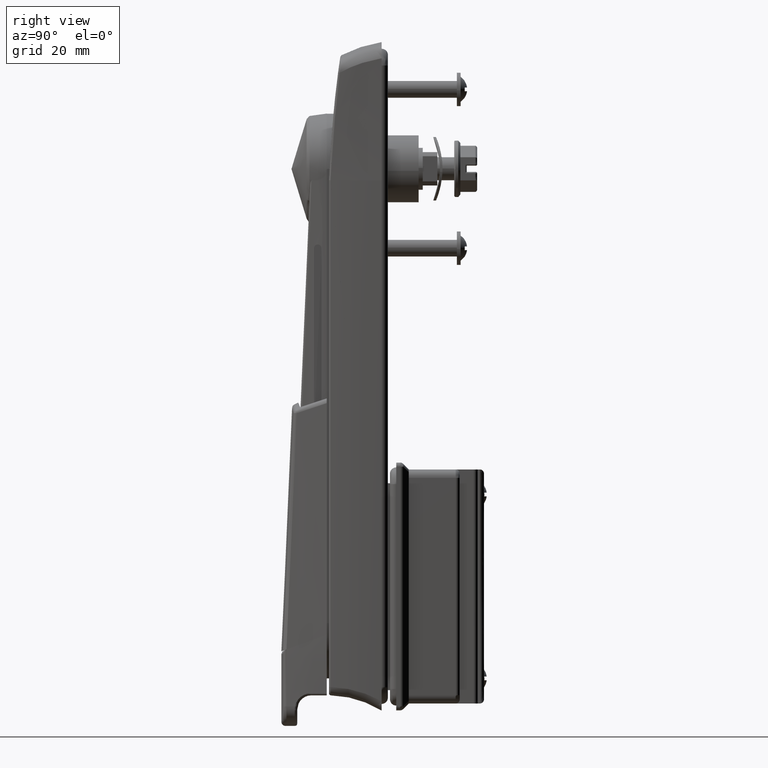
[diagram: clean part render]
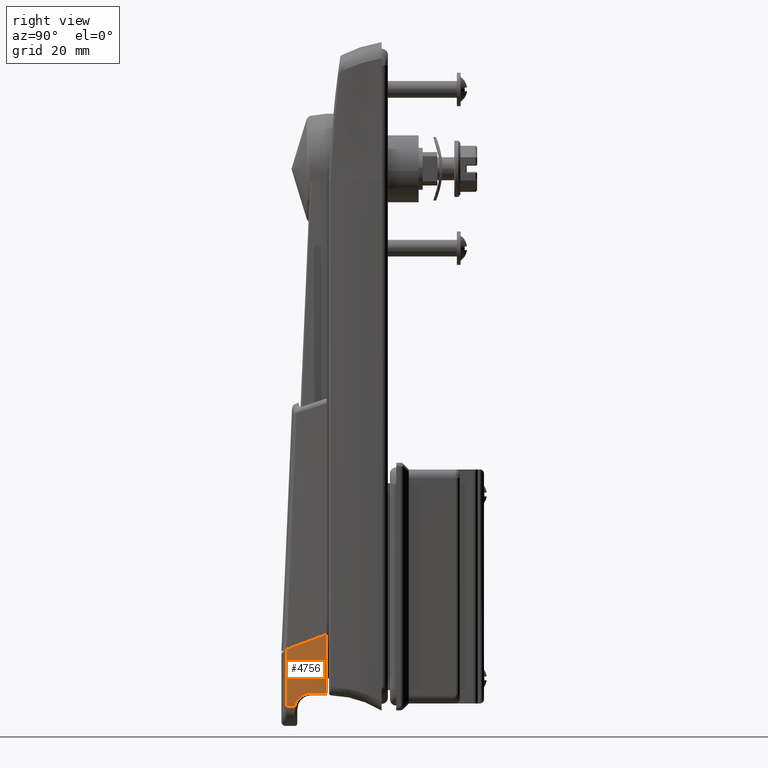
[diagram: same view with one face highlighted and labeled with its STEP entity id]
A machine part, right view. The second image highlights one B-rep face of the part: STEP entity #4756.
In plain terms, the highlighted face is a freeform B-spline surface patch.
Its self-contained STEP definition (entity closure, byte-faithful):
#1016=CARTESIAN_POINT('',(-20.437741577247500,-14.173826828123200,-128.573514057781210));
#1017=VERTEX_POINT('',#1016);
#1400=CARTESIAN_POINT('',(-16.605503485254399,-15.093079047380600,-125.500802460572800));
#1401=VERTEX_POINT('',#1400);
#1415=CARTESIAN_POINT('',(-20.437741577247500,-14.173826828123181,-128.573514057781210));
#1416=CARTESIAN_POINT('',(-20.389402791911721,-14.186829676894810,-128.352041211892210));
#1417=CARTESIAN_POINT('',(-20.322625419943829,-14.204603862538891,-128.138482486131490));
#1418=CARTESIAN_POINT('',(-20.196296324896931,-14.237839788897460,-127.829353327515610));
#1419=CARTESIAN_POINT('',(-20.149799599089292,-14.250020197330540,-127.728189721014300));
#1420=CARTESIAN_POINT('',(-20.073434810927719,-14.269920275826861,-127.579276771238900));
#1421=CARTESIAN_POINT('',(-20.046875086678089,-14.276825536657981,-127.530111839665000));
#1422=CARTESIAN_POINT('',(-19.991520821552079,-14.291179936777560,-127.432737559898100));
#1423=CARTESIAN_POINT('',(-19.962655708857142,-14.298647268329260,-127.384417805875100));
#1424=CARTESIAN_POINT('',(-19.813566340453001,-14.337113614623510,-127.146691549177800));
#1425=CARTESIAN_POINT('',(-19.679880032877300,-14.371291847768219,-126.969755840209700));
#1426=CARTESIAN_POINT('',(-19.458803603142179,-14.427093815210730,-126.723162336349500));
#1427=CARTESIAN_POINT('',(-19.381666585260721,-14.446454989187840,-126.644118223696000));
#1428=CARTESIAN_POINT('',(-19.260753430206250,-14.476604656486940,-126.530310400337100));
#1429=CARTESIAN_POINT('',(-19.219579932888418,-14.486839446380190,-126.493168589756000));
#1430=CARTESIAN_POINT('',(-19.135473434033280,-14.507676359574610,-126.420491141730100));
#1431=CARTESIAN_POINT('',(-19.092463148761759,-14.518297373249689,-126.384899665215100));
#1432=CARTESIAN_POINT('',(-18.874879482028970,-14.571842288361260,-126.212513058450800));
#1433=CARTESIAN_POINT('',(-18.691601842682878,-14.616363006932129,-126.091215776743600));
#1434=CARTESIAN_POINT('',(-18.403393838385188,-14.685283927476871,-125.933121141755510));
#1435=CARTESIAN_POINT('',(-18.305096777830698,-14.708617118037120,-125.884420892557400));
#1436=CARTESIAN_POINT('',(-18.154266156291971,-14.744131637865969,-125.817432331570800));
#1437=CARTESIAN_POINT('',(-18.103424366512581,-14.756055753963899,-125.796114462825400));
#1438=CARTESIAN_POINT('',(-18.000594402605490,-14.780073628487040,-125.755529697924800));
#1439=CARTESIAN_POINT('',(-17.948547056174750,-14.792180858048351,-125.736248064963410));
#1440=CARTESIAN_POINT('',(-17.687821127601090,-14.852577038165711,-125.645852623559410));
#1441=CARTESIAN_POINT('',(-17.475911340539160,-14.900860198143119,-125.591896814965910));
#1442=CARTESIAN_POINT('',(-17.045633774829842,-14.997175586122580,-125.519372844692000));
#1443=CARTESIAN_POINT('',(-16.827266522894949,-15.045208382457410,-125.500802476062200));
#1444=CARTESIAN_POINT('',(-16.605503485254399,-15.093079047380600,-125.500802460575200));
#1445=B_SPLINE_CURVE_WITH_KNOTS('',3,(#1415,#1416,#1417,#1418,#1419,#1420,#1421,#1422,#1423,#1424,#1425,#1426,#1427,#1428,#1429,#1430,#1431,#1432,#1433,#1434,#1435,#1436,#1437,#1438,#1439,#1440,#1441,#1442,#1443,#1444),.UNSPECIFIED.,.F.,.U.,(4,2,2,2,2,2,2,2,2,2,2,2,2,2,4),(0.0,0.124999999999966,0.187499999999949,0.218749999999947,0.249999999999945,0.374999999999936,0.437499999999932,0.468749999999934,0.499999999999936,0.624999999999956,0.687499999999962,0.718749999999965,0.749999999999968,0.874999999999984,1.0),.UNSPECIFIED.);
#1446=EDGE_CURVE('',#1017,#1401,#1445,.T.);
#1533=CARTESIAN_POINT('',(-12.850000756554760,-15.821711741289651,-125.500812781384990));
#1534=VERTEX_POINT('',#1533);
#1558=CARTESIAN_POINT('',(-16.605503485254399,-15.093079047380600,-125.500802460572800));
#1559=CARTESIAN_POINT('',(-15.358876714262880,-15.362180930679351,-125.500806129351300));
#1560=CARTESIAN_POINT('',(-14.106814543298270,-15.605116563039370,-125.500809569853700));
#1561=CARTESIAN_POINT('',(-12.850000756554760,-15.821711741289651,-125.500812781384990));
#1562=QUASI_UNIFORM_CURVE('',3,(#1558,#1559,#1560,#1561),.UNSPECIFIED.,.F.,.U.);
#1563=EDGE_CURVE('',#1401,#1534,#1562,.T.);
#2790=CARTESIAN_POINT('',(-22.501971460766299,-13.607963545107481,-128.650667776603600));
#2791=VERTEX_POINT('',#2790);
#3058=CARTESIAN_POINT('',(-22.500207253885549,-13.630772463048819,-115.024608508633190));
#3059=VERTEX_POINT('',#3058);
#3060=CARTESIAN_POINT('',(-22.500207253885549,-13.630772463048819,-115.024608508633190));
#3061=CARTESIAN_POINT('',(-22.501971460766299,-13.607963545107481,-128.650667776603600));
#3062=QUASI_UNIFORM_CURVE('',1,(#3060,#3061),.UNSPECIFIED.,.F.,.U.);
#3063=EDGE_CURVE('',#3059,#2791,#3062,.T.);
#4467=CARTESIAN_POINT('',(-22.501971460766281,-13.607963545107481,-128.650667776603600));
#4468=CARTESIAN_POINT('',(-21.816151388087011,-13.804647138706070,-128.624588931537890));
#4469=CARTESIAN_POINT('',(-21.128002671823801,-13.993285718331110,-128.598808725776790));
#4470=CARTESIAN_POINT('',(-20.437741577247529,-14.173826828123181,-128.573514057781410));
#4471=QUASI_UNIFORM_CURVE('',3,(#4467,#4468,#4469,#4470),.UNSPECIFIED.,.F.,.U.);
#4472=EDGE_CURVE('',#2791,#1017,#4471,.T.);
#4611=CARTESIAN_POINT('',(-12.850000756554760,-15.844782683487800,-111.405629074290600));
#4612=VERTEX_POINT('',#4611);
#4613=CARTESIAN_POINT('',(-22.500207253885549,-13.630772463048819,-115.024608508633190));
#4614=CARTESIAN_POINT('',(-20.914296389453380,-14.086444181494260,-114.421074584558200));
#4615=CARTESIAN_POINT('',(-19.316738564274541,-14.498903692101001,-113.817460046550390));
#4616=CARTESIAN_POINT('',(-16.098293148603219,-15.237423097173041,-112.610386550987600));
#4617=CARTESIAN_POINT('',(-14.478371105041321,-15.563169845165531,-112.007298624337300));
#4618=CARTESIAN_POINT('',(-12.850000756554760,-15.844782683488249,-111.405629074017800));
#4619=B_SPLINE_CURVE_WITH_KNOTS('',3,(#4613,#4614,#4615,#4616,#4617,#4618),.UNSPECIFIED.,.F.,.U.,(4,2,4),(0.000392611694199,0.500000000000000,1.0),.UNSPECIFIED.);
#4620=EDGE_CURVE('',#3059,#4612,#4619,.T.);
#4727=CARTESIAN_POINT('',(-12.752376064221851,-15.833098125338511,-128.823118163626790));
#4728=CARTESIAN_POINT('',(-16.072227444861479,-15.264625880220519,-128.823118163626700));
#4729=CARTESIAN_POINT('',(-19.360511435375379,-14.512164497328889,-128.823118163626700));
#4730=CARTESIAN_POINT('',(-22.597207416263029,-13.580327812169591,-128.823118163626790));
#4731=CARTESIAN_POINT('',(-12.752383680766780,-15.842693861038070,-122.959805004840310));
#4732=CARTESIAN_POINT('',(-16.071976003184609,-15.274265689472349,-122.959805004840310));
#4733=CARTESIAN_POINT('',(-19.360005865338898,-14.521877119698580,-122.959805004840310));
#4734=CARTESIAN_POINT('',(-22.596457295058180,-13.590140817030990,-122.959805004840310));
#4735=CARTESIAN_POINT('',(-12.752391297311711,-15.852289596737640,-117.096491846053790));
#4736=CARTESIAN_POINT('',(-16.071724561507772,-15.283905498724179,-117.096491846053690));
#4737=CARTESIAN_POINT('',(-19.359500295302428,-14.531589742068251,-117.096491846053690));
#4738=CARTESIAN_POINT('',(-22.595707173853292,-13.599953821892401,-117.096491846053790));
#4739=CARTESIAN_POINT('',(-12.752398913856640,-15.861885332437220,-111.233178687267400));
#4740=CARTESIAN_POINT('',(-16.071473119830941,-15.293545307976011,-111.233178687267400));
#4741=CARTESIAN_POINT('',(-19.358994725265969,-14.541302364437939,-111.233178687267400));
#4742=CARTESIAN_POINT('',(-22.594957052648422,-13.609766826753820,-111.233178687267400));
#4743=B_SPLINE_SURFACE_WITH_KNOTS('',3,3,((#4727,#4731,#4735,#4739),(#4728,#4732,#4736,#4740),(#4729,#4733,#4737,#4741),(#4730,#4734,#4738,#4742)),.UNSPECIFIED.,.F.,.F.,.U.,(4,4),(4,4),(0.0,10.104512108312729),(0.0,17.589964255270932),.UNSPECIFIED.);
#4744=ORIENTED_EDGE('',*,*,#4472,.T.);
#4745=ORIENTED_EDGE('',*,*,#1446,.T.);
#4746=ORIENTED_EDGE('',*,*,#1563,.T.);
#4747=CARTESIAN_POINT('',(-12.850000756554760,-15.821711741289651,-125.500812781384990));
#4748=CARTESIAN_POINT('',(-12.850000756554749,-15.844782683487789,-111.405629074290600));
#4749=B_SPLINE_CURVE_WITH_KNOTS('',1,(#4747,#4748),.UNSPECIFIED.,.F.,.U.,(2,2),(0.356058748674085,0.998031912338394),.UNSPECIFIED.);
#4750=EDGE_CURVE('',#1534,#4612,#4749,.T.);
#4751=ORIENTED_EDGE('',*,*,#4750,.T.);
#4752=ORIENTED_EDGE('',*,*,#4620,.F.);
#4753=ORIENTED_EDGE('',*,*,#3063,.T.);
#4754=EDGE_LOOP('',(#4744,#4745,#4746,#4751,#4752,#4753));
#4755=FACE_OUTER_BOUND('',#4754,.T.);
#4756=ADVANCED_FACE('',(#4755),#4743,.F.);